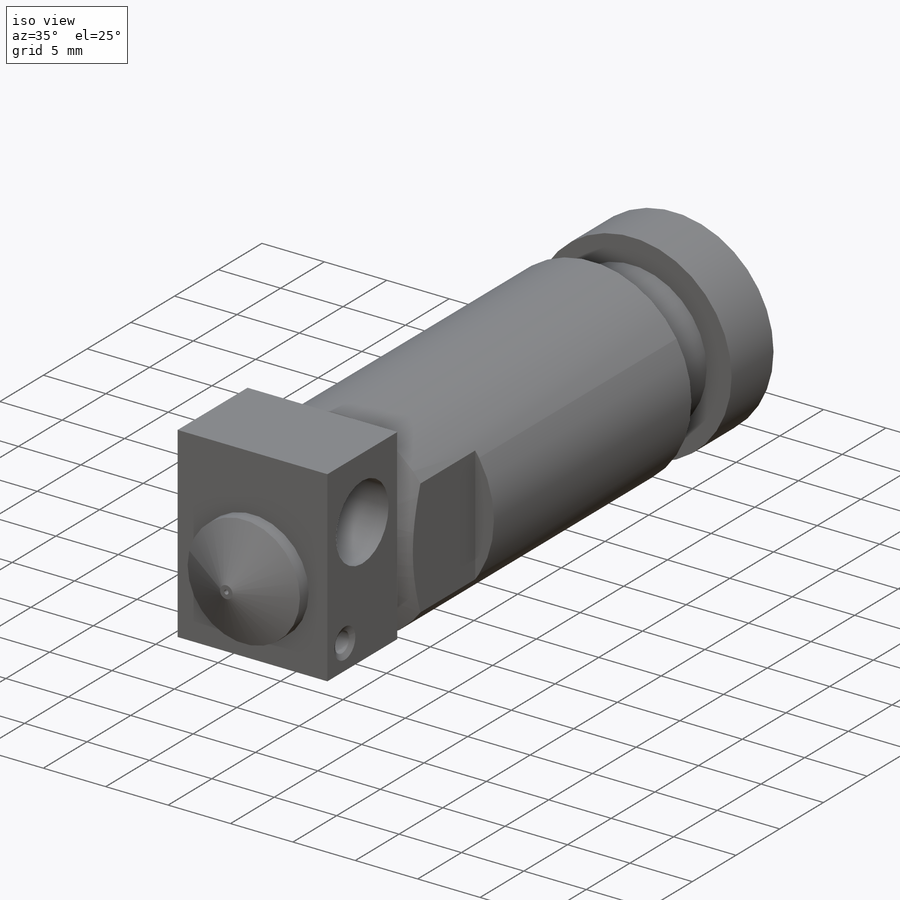
[diagram: iso view]
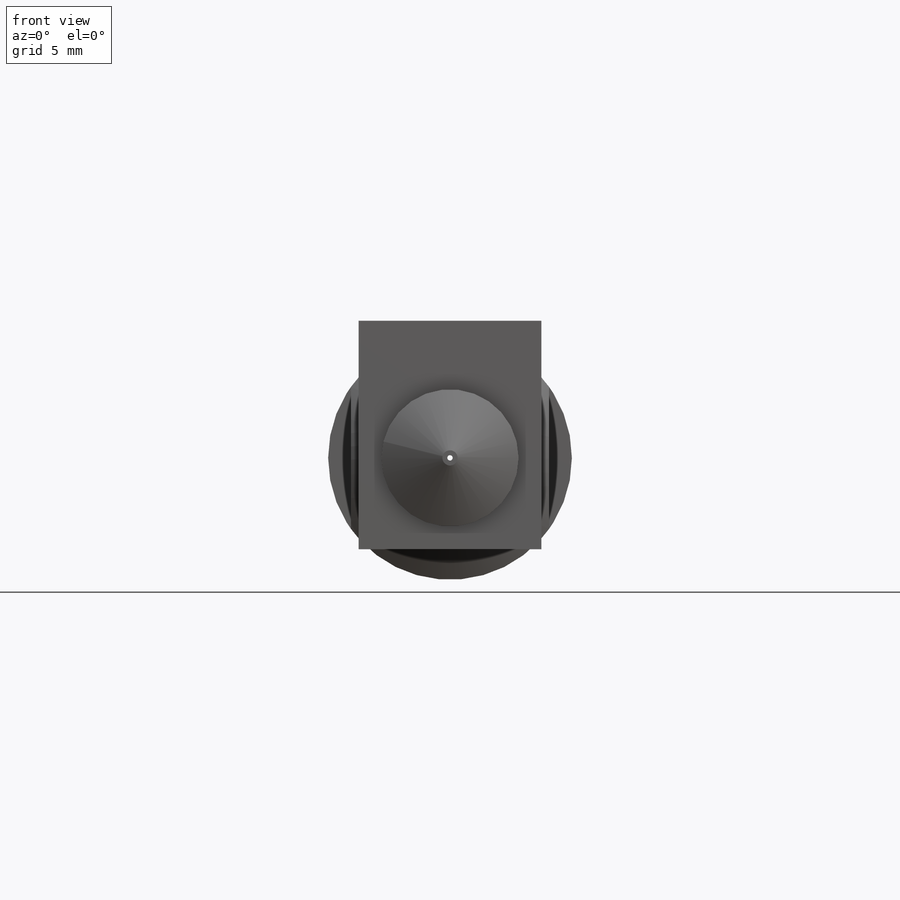
[diagram: front view]
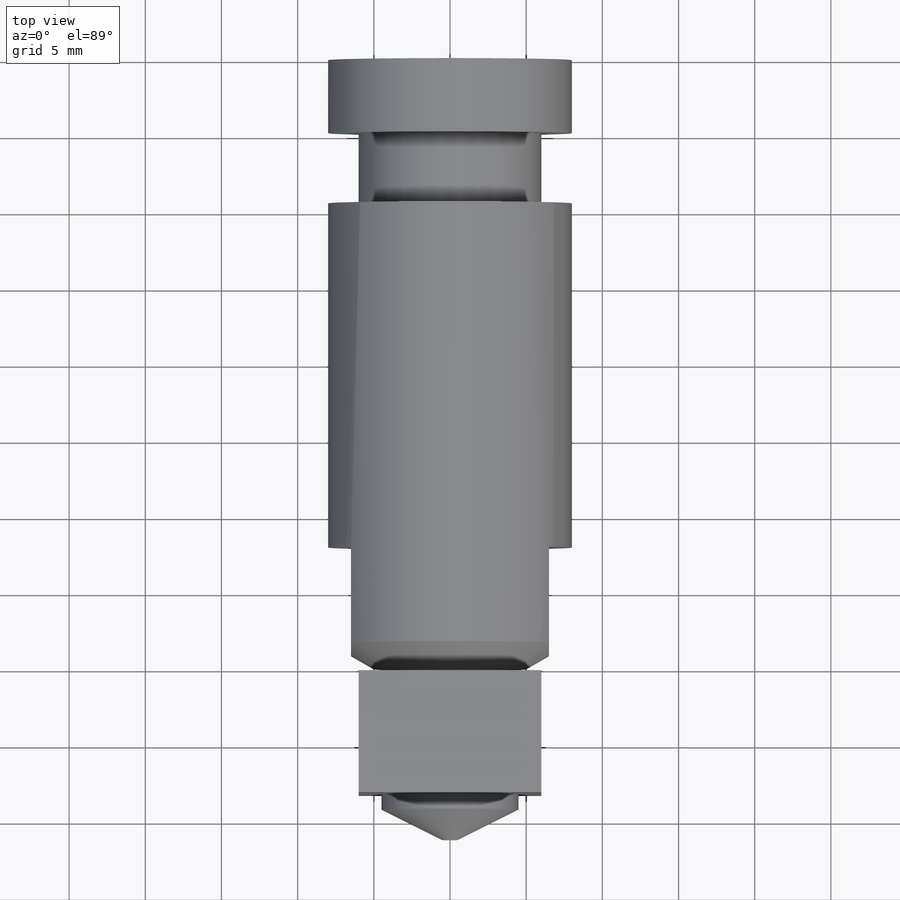
[diagram: top view]
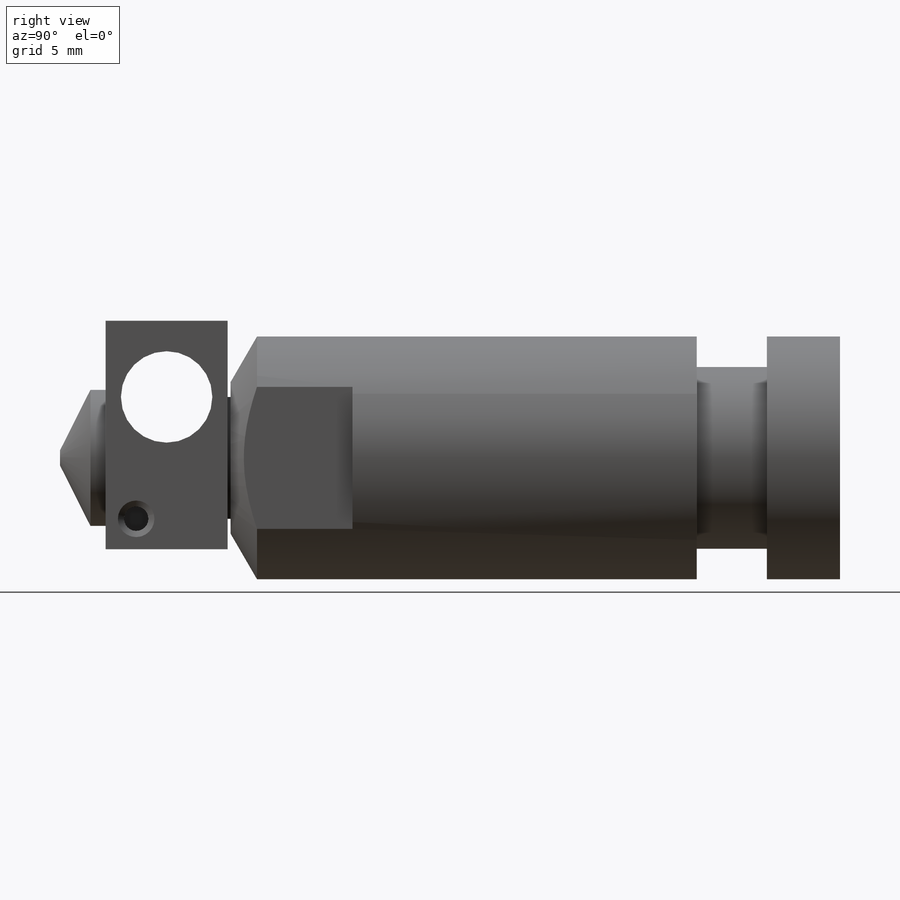
[diagram: right view]
SOLIDWORKS PART (.sldprt)
format: sldprt  version: not decoded by parser v0  size: 420,352 bytes
history: native  units: mm
features: sketch x12, cut_extrude x6, extrude x5, plane x3, chamfer x3, material x1, cut_revolve x1 (+8 scaffold rows collapsed)
feature tree (39):
  scaffold x8  (default folders/planes/origin — collapsed)
  material  "Matériau <non spécifié>"
  plane  "Plan de face"
  plane  "Plan de dessus"
  plane  "Plan de droite"
  sketch  "Esquisse1"  dims[D1=16.0mm]
  extrude  "Boss.-Extru.1"  Depth=40mm
  sketch  "Esquisse2"  dims[D1=12.0mm D2=16.0mm]
  cut_extrude  "Enlèv. mat.-Extru.1"  Depth=4.6mm
  chamfer  "Chanfrein1"  Distance=3mm Angle=30deg
  sketch  "Esquisse3"  dims[D1=13.0mm D2=6.5mm D3=6.0mm D4=6.0mm D5=6.0mm D6=6.0mm D7=2.0mm D8=2.0mm]
  cut_extrude  "Enlèv. mat.-Extru.2"  Depth=8mm
  sketch  "Esquisse4"  dims[D2=2.0mm D3=2.0mm D4=2.0mm D5=2.0mm D9=2.0mm D1=13.5mm D6=3.0mm D7=3.0mm D8=3.0mm D10=3.0mm D11=3.0mm]
  cut_revolve  "Enlèvement de matière-Révolution1"  Angle=360deg
  sketch  "Esquisse8"  dims[D1=2.0mm]
  cut_extrude  "Enlèv. mat.-Extru.4"  [1 undecoded]
  sketch  "Esquisse9"  dims[D1=8.0mm]
  extrude  "Boss.-Extru.2"  Depth=0.2mm
  sketch  "Esquisse10"  dims[c1.D3=8.0mm c1.D1=15.0mm c1.D2=12.0mm c2.D3=6.0mm c2.D4=6.0mm]
  extrude  "Boss.-Extru.3"  Depth=8mm
  sketch  "Esquisse11"  dims[D1=6.0mm D4=1.4mm D2=4.0mm D3=5.0mm D5=2.0mm D6=2.0mm]
  cut_extrude  "Enlèv. mat.-Extru.5"  [1 undecoded]
  sketch  "Esquisse13"  dims[D1=1.6mm D2=2.0mm D3=2.0mm]
  cut_extrude  "Enlèv. mat.-Extru.6"  Depth=3mm
  chamfer  "Chanfrein2"  Distance=0.4mm Angle=30deg
  sketch  "Esquisse14"  dims[D1=9.0mm D2=0.0mm]
  extrude  "Boss.-Extru.4"  Depth=1mm
  sketch  "Esquisse15"
  extrude  "Boss.-Extru.5"  Depth=2mm
  chamfer  "Chanfrein3"  Distance=2mm
  sketch  "Esquisse16"  dims[D1=0.35mm]
  cut_extrude  "Enlèv. mat.-Extru.7"  [1 undecoded]
decode coverage: 23 of 27 modeling features carry decoded parameters
note: 3 parameter values undecoded
summary: no parameter record found for 3 features
note: suppression state not decoded; provenance and decode notes live in map.json
